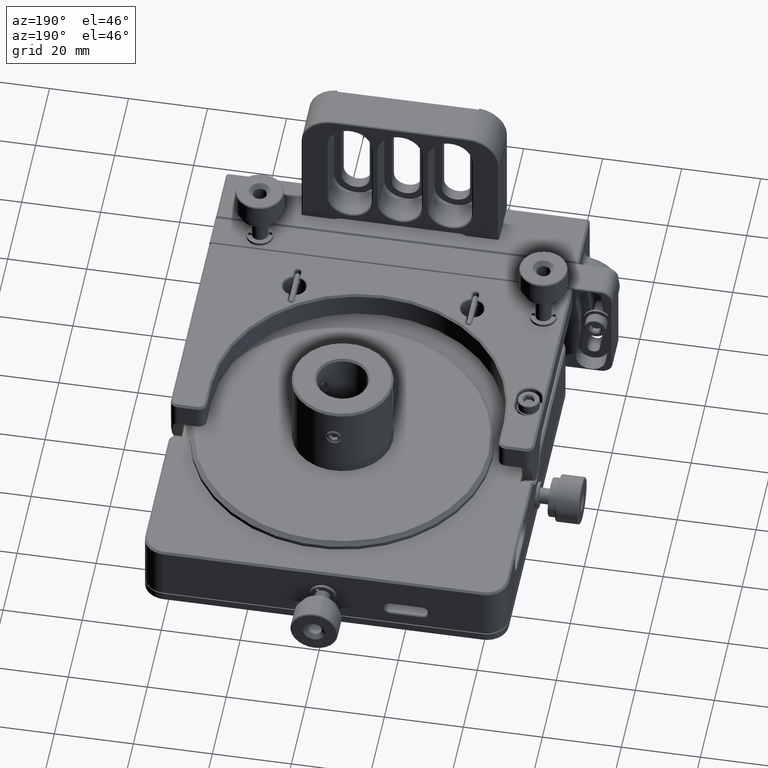
[diagram: clean part render]
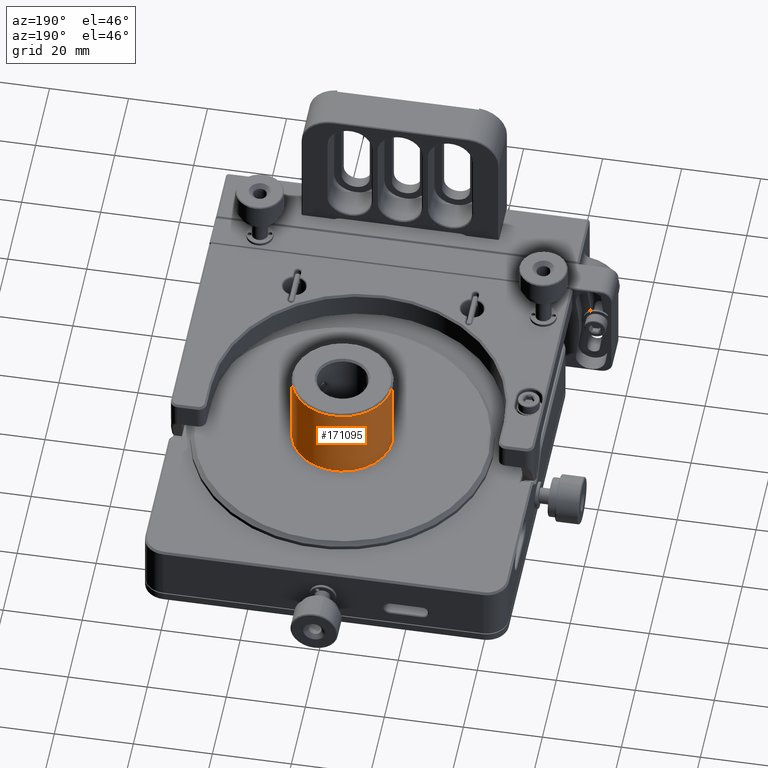
[diagram: same view with one face highlighted and labeled with its STEP entity id]
A machine part, auxiliary view. The second image highlights one B-rep face of the part: STEP entity #171095.
In plain terms, the highlighted cylindrical surface (partial cylindrical patch) has radius 12.698 mm, axis along (-0, -0, 1).
Its self-contained STEP definition (entity closure, byte-faithful):
#508 = CARTESIAN_POINT ( 'NONE',  ( 5.254184034160585881, 80.47759828847161145, 17.06266995262775765 ) ) ;
#2625 = DIRECTION ( 'NONE',  ( -0.000000000000000000, -0.000000000000000000, 1.000000000000000000 ) ) ;
#7463 = CARTESIAN_POINT ( 'NONE',  ( 1.653850114024950635, 80.53290262516031817, 15.92424344947711212 ) ) ;
#7929 = CARTESIAN_POINT ( 'NONE',  ( 5.254424885712084325, 80.47756001795679026, 17.33321840988929452 ) ) ;
#11191 = CARTESIAN_POINT ( 'NONE',  ( 4.865766236773393594, 80.53336909465060955, 15.91894263216253336 ) ) ;
#12707 = CARTESIAN_POINT ( 'NONE',  ( 2.991673036625071447, 80.63273077536217670, 19.33511980929755936 ) ) ;
#12941 = CARTESIAN_POINT ( 'NONE',  ( 4.290588455545328195, 80.59361543637069758, 19.04557798173056327 ) ) ;
#20749 = DIRECTION ( 'NONE',  ( 1.000000000000000000, 0.000000000000000000, 0.000000000000000000 ) ) ;
#21268 = CARTESIAN_POINT ( 'NONE',  ( 4.507158145227051271, 80.57414106991549829, 18.88280191626660098 ) ) ;
#21614 = DIRECTION ( 'NONE',  ( 0.000000000000000000, 0.000000000000000000, -1.000000000000000000 ) ) ;
#21680 = CARTESIAN_POINT ( 'NONE',  ( 3.125167098379118436, 80.63490672952566740, 15.05000000000000249 ) ) ;
#22370 = ORIENTED_EDGE ( 'NONE', *, *, #131929, .F. ) ;
#22405 = VERTEX_POINT ( 'NONE', #130311 ) ;
#23582 = EDGE_CURVE ( 'NONE', #65465, #77016, #159232, .T. ) ;
#25425 = VECTOR ( 'NONE', #133388, 1000.000000000000000 ) ;
#25430 = CARTESIAN_POINT ( 'NONE',  ( 3.261633096731149983, 80.63490672952565319, 15.05000000000000604 ) ) ;
#27175 = CARTESIAN_POINT ( 'NONE',  ( 5.195307603587358436, 80.48683436411978676, 17.73583536331447519 ) ) ;
#27226 = EDGE_CURVE ( 'NONE', #22405, #67735, #42604, .T. ) ;
#27838 = CARTESIAN_POINT ( 'NONE',  ( 1.268658629827867701, 80.47753099116624753, 17.07005893717204259 ) ) ;
#38514 = CARTESIAN_POINT ( 'NONE',  ( 1.365880339414113909, 80.49268620777692718, 17.87485179338816010 ) ) ;
#38760 = CARTESIAN_POINT ( 'NONE',  ( 3.397356113308865222, 80.63490672952563898, 19.35000000000000497 ) ) ;
#39654 = CARTESIAN_POINT ( 'NONE',  ( 3.927963333403809543, 80.61801542554628952, 19.23093074672235758 ) ) ;
#40540 = CARTESIAN_POINT ( 'NONE',  ( 5.193909434965968686, 80.48705027416048097, 16.65845908991830626 ) ) ;
#41174 = CARTESIAN_POINT ( 'NONE',  ( 1.329588331093721543, 80.48708612607647694, 17.74258250134342774 ) ) ;
#42604 = B_SPLINE_CURVE_WITH_KNOTS ( 'NONE', 3,
 ( #77719, #21680, #64356, #172934, #101802, #142751, #75110, #129381, #7463, #61762, #170343, #48405, #102681, #156993, #27838, #55413, #160463, #41174, #38514, #106162, #107941, #79466, #147993, #82126, #109694, #12707, #164011, #54554 ),
 .UNSPECIFIED., .F., .F.,
 ( 4, 2, 2, 2, 2, 2, 2, 2, 2, 2, 2, 2, 2, 4 ),
 ( 0.01135673180680384954, 0.01176349796898941424, 0.01217026413117497895, 0.01298379645554610488, 0.01339056261773167132, 0.01379732877991723776, 0.01420409494210280593, 0.01461086110428837237, 0.01501762726647393881, 0.01542439342865950525, 0.01623792575303063465, 0.01705145807740176753, 0.01745822423958733050, 0.01786499040177289693 ),
 .UNSPECIFIED. ) ;
#48405 = CARTESIAN_POINT ( 'NONE',  ( 1.362750636554019179, 80.49221196540590029, 16.53530761371471414 ) ) ;
#48967 = EDGE_CURVE ( 'NONE', #111548, #77016, #148616, .T. ) ;
#54554 = CARTESIAN_POINT ( 'NONE',  ( 3.261633096731180625, 80.63490672952571003, 19.35000000000040643 ) ) ;
#55413 = CARTESIAN_POINT ( 'NONE',  ( 1.269275005505372533, 80.47762893096623316, 17.34046873637883834 ) ) ;
#55751 = LINE ( 'NONE', #148327, #125463 ) ;
#56916 = CYLINDRICAL_SURFACE ( 'NONE', #79635, 12.69800000000000040 ) ;
#57892 = ORIENTED_EDGE ( 'NONE', *, *, #23582, .F. ) ;
#61762 = CARTESIAN_POINT ( 'NONE',  ( 1.515434818265035899, 80.51446095499440503, 16.15687218733976138 ) ) ;
#62222 = CARTESIAN_POINT ( 'NONE',  ( 4.174093525944051031, 80.60268326090323399, 15.28404915194718150 ) ) ;
#64356 = CARTESIAN_POINT ( 'NONE',  ( 2.990698861183489932, 80.63270835796626557, 15.06503568622006028 ) ) ;
#65465 = VERTEX_POINT ( 'NONE', #147551 ) ;
#66348 = CARTESIAN_POINT ( 'NONE',  ( 5.064109665665098348, 80.50641557257533520, 16.27490055308177475 ) ) ;
#67239 = CARTESIAN_POINT ( 'NONE',  ( 4.606170022506306694, 80.56384771829603153, 15.60864863509328870 ) ) ;
#67735 = VERTEX_POINT ( 'NONE', #89325 ) ;
#75110 = CARTESIAN_POINT ( 'NONE',  ( 2.005934790488615338, 80.57398628722522460, 15.50837068202054247 ) ) ;
#75592 = EDGE_CURVE ( 'NONE', #81756, #65465, #144565, .T. ) ;
#77016 = VERTEX_POINT ( 'NONE', #172127 ) ;
#77719 = CARTESIAN_POINT ( 'NONE',  ( 3.261633096731149983, 80.63490672952565319, 15.05000000000000604 ) ) ;
#79466 = CARTESIAN_POINT ( 'NONE',  ( 2.008039209826939953, 80.57416384092607586, 18.89274337173506524 ) ) ;
#79635 = AXIS2_PLACEMENT_3D ( 'NONE', #165504, #2625, #125434 ) ;
#80576 = CARTESIAN_POINT ( 'NONE',  ( 4.174949264192922449, 80.60262294783910875, 19.11548911059504263 ) ) ;
#81468 = CARTESIAN_POINT ( 'NONE',  ( 4.786274793737296029, 80.54336880159065970, 15.81042564990065102 ) ) ;
#81756 = VERTEX_POINT ( 'NONE', #88404 ) ;
#82126 = CARTESIAN_POINT ( 'NONE',  ( 2.596147527756150986, 80.61804587433147162, 19.23112934630206539 ) ) ;
#87234 = EDGE_LOOP ( 'NONE', ( #22370, #139004 ) ) ;
#88404 = CARTESIAN_POINT ( 'NONE',  ( -9.436366903268853079, 67.93690672952565990, 5.200000000000008171 ) ) ;
#89325 = CARTESIAN_POINT ( 'NONE',  ( 3.261633096731180625, 80.63490672952571003, 19.35000000000040643 ) ) ;
#93044 = CARTESIAN_POINT ( 'NONE',  ( 5.159434450553439966, 80.49237563960332409, 17.86818963106929203 ) ) ;
#98441 = CARTESIAN_POINT ( 'NONE',  ( -9.436366903268853079, 67.93690672952565990, 24.70000000000001350 ) ) ;
#99598 = FACE_OUTER_BOUND ( 'NONE', #110757, .T. ) ;
#101101 = ORIENTED_EDGE ( 'NONE', *, *, #75592, .F. ) ;
#101802 = CARTESIAN_POINT ( 'NONE',  ( 2.595020965364231547, 80.61799176542251644, 15.16925490185409409 ) ) ;
#102681 = CARTESIAN_POINT ( 'NONE',  ( 1.327626394303378143, 80.48678290944666003, 16.66566357310241031 ) ) ;
#105528 = CARTESIAN_POINT ( 'NONE',  ( 5.242764004446205384, 80.47943044122378353, 17.46785732006928171 ) ) ;
#105843 = DIRECTION ( 'NONE',  ( 1.000000000000000000, 0.000000000000000000, 0.000000000000000000 ) ) ;
#106162 = CARTESIAN_POINT ( 'NONE',  ( 1.507379039757452022, 80.51350754202644566, 18.25371441414634788 ) ) ;
#107941 = CARTESIAN_POINT ( 'NONE',  ( 1.649451353851502100, 80.53343938581048178, 18.49199015092616705 ) ) ;
#108289 = DIRECTION ( 'NONE',  ( -0.000000000000000000, -0.000000000000000000, 1.000000000000000000 ) ) ;
#108850 = AXIS2_PLACEMENT_3D ( 'NONE', #143548, #21614, #20749 ) ;
#109694 = CARTESIAN_POINT ( 'NONE',  ( 2.726305986772625811, 80.62431196157513114, 19.27580021545859523 ) ) ;
#110411 = AXIS2_PLACEMENT_3D ( 'NONE', #132547, #121852, #105843 ) ;
#110757 = EDGE_LOOP ( 'NONE', ( #101101, #154855, #153097, #57892 ) ) ;
#111548 = VERTEX_POINT ( 'NONE', #98441 ) ;
#117412 = CARTESIAN_POINT ( 'NONE',  ( 15.95963309673114772, 67.93690672952565990, -105.3550330477587380 ) ) ;
#119046 = EDGE_CURVE ( 'NONE', #81756, #111548, #55751, .T. ) ;
#119779 = CARTESIAN_POINT ( 'NONE',  ( 3.798598475184198797, 80.62423508190074983, 19.27525125693348684 ) ) ;
#120641 = CARTESIAN_POINT ( 'NONE',  ( 5.018791746407708310, 80.51309771097366763, 18.24820603124245366 ) ) ;
#121540 = CARTESIAN_POINT ( 'NONE',  ( 4.289355806817995109, 80.59371121500818447, 15.35368003699588613 ) ) ;
#121852 = DIRECTION ( 'NONE',  ( -0.000000000000000000, -0.000000000000000000, -1.000000000000000000 ) ) ;
#125434 = DIRECTION ( 'NONE',  ( 1.000000000000000000, 0.000000000000000000, 0.000000000000000000 ) ) ;
#125463 = VECTOR ( 'NONE', #108289, 1000.000000000000000 ) ;
#128055 = FACE_BOUND ( 'NONE', #87234, .T. ) ;
#129381 = CARTESIAN_POINT ( 'NONE',  ( 1.733748924409264536, 80.54298115624354182, 15.81444092557703840 ) ) ;
#129849 = CARTESIAN_POINT ( 'NONE',  ( 3.534698436270926614, 80.63265672151035801, 19.33460514995109847 ) ) ;
#130311 = CARTESIAN_POINT ( 'NONE',  ( 3.261633096731149983, 80.63490672952565319, 15.05000000000000604 ) ) ;
#131929 = EDGE_CURVE ( 'NONE', #67735, #22405, #168189, .T. ) ;
#132547 = CARTESIAN_POINT ( 'NONE',  ( 3.261633096731147763, 67.93690672952565990, 5.200000000000008171 ) ) ;
#133119 = CARTESIAN_POINT ( 'NONE',  ( 5.158389384611218986, 80.49253454821509024, 16.52834695825949751 ) ) ;
#133388 = DIRECTION ( 'NONE',  ( -0.000000000000000000, -0.000000000000000000, 1.000000000000000000 ) ) ;
#134861 = CARTESIAN_POINT ( 'NONE',  ( 5.241943357795489256, 80.47956059974646337, 16.92541856730390393 ) ) ;
#139004 = ORIENTED_EDGE ( 'NONE', *, *, #27226, .F. ) ;
#142751 = CARTESIAN_POINT ( 'NONE',  ( 2.227265141200841292, 80.59509098390850568, 15.34098332770649797 ) ) ;
#143548 = CARTESIAN_POINT ( 'NONE',  ( 3.261633096731147763, 67.93690672952565990, 24.70000000000001350 ) ) ;
#144565 = CIRCLE ( 'NONE', #110411, 12.69800000000000040 ) ;
#147353 = CARTESIAN_POINT ( 'NONE',  ( 4.504911967457543298, 80.57435787293924534, 15.51532829698425431 ) ) ;
#147551 = CARTESIAN_POINT ( 'NONE',  ( 15.95963309673114772, 67.93690672952565990, 5.200000000000008171 ) ) ;
#147993 = CARTESIAN_POINT ( 'NONE',  ( 2.229956786955461290, 80.59529036258123824, 19.06055434798302883 ) ) ;
#148327 = CARTESIAN_POINT ( 'NONE',  ( -9.436366903268853079, 67.93690672952565990, -105.3550330477587380 ) ) ;
#148616 = CIRCLE ( 'NONE', #108850, 12.69800000000000040 ) ;
#149101 = CARTESIAN_POINT ( 'NONE',  ( 5.004590970750414591, 80.51491154334193823, 16.15063331344536834 ) ) ;
#153097 = ORIENTED_EDGE ( 'NONE', *, *, #48967, .T. ) ;
#154855 = ORIENTED_EDGE ( 'NONE', *, *, #119046, .T. ) ;
#156993 = CARTESIAN_POINT ( 'NONE',  ( 1.280445559075287010, 80.47942123009615045, 16.93284248834589789 ) ) ;
#159232 = LINE ( 'NONE', #117412, #25425 ) ;
#160463 = CARTESIAN_POINT ( 'NONE',  ( 1.281350550774083663, 80.47956517581260982, 17.47497957513269640 ) ) ;
#161593 = CARTESIAN_POINT ( 'NONE',  ( 3.261633096731180625, 80.63490672952571003, 19.35000000000040643 ) ) ;
#162496 = CARTESIAN_POINT ( 'NONE',  ( 4.877597099449071827, 80.53295961703071271, 18.48675234816511903 ) ) ;
#164011 = CARTESIAN_POINT ( 'NONE',  ( 3.125883482500537269, 80.63490672952566740, 19.35000000000001208 ) ) ;
#165504 = CARTESIAN_POINT ( 'NONE',  ( 3.261633096731147763, 67.93690672952565990, -105.3550330477587380 ) ) ;
#168189 = B_SPLINE_CURVE_WITH_KNOTS ( 'NONE', 3,
 ( #161593, #38760, #129849, #119779, #39654, #80576, #12941, #21268, #174054, #162496, #120641, #93044, #27175, #105528, #7929, #508, #134861, #40540, #133119, #66348, #149101, #11191, #81468, #67239, #147353, #121540, #62222, #170793, #175838, #25430 ),
 .UNSPECIFIED., .F., .F.,
 ( 4, 2, 2, 2, 2, 2, 2, 2, 2, 2, 2, 2, 2, 2, 4 ),
 ( 0.004849748386022164834, 0.005256434849821022513, 0.005663121313619880193, 0.006069807777418737872, 0.006476494241217595552, 0.007289867168815313513, 0.007696553632614167723, 0.008103240096413022800, 0.008509926560211876143, 0.008916613024010731220, 0.009323299487809584563, 0.009729985951608437905, 0.01013667241540729125, 0.01054335887920614633, 0.01135673180680384954 ),
 .UNSPECIFIED. ) ;
#170343 = CARTESIAN_POINT ( 'NONE',  ( 1.456399077069744807, 80.50601864317921752, 16.28113126196876692 ) ) ;
#170793 = CARTESIAN_POINT ( 'NONE',  ( 3.804031803172226223, 80.62572497055741394, 15.11126751710417793 ) ) ;
#171095 = ADVANCED_FACE ( 'NONE', ( #128055, #99598 ), #56916, .T. ) ;
#172127 = CARTESIAN_POINT ( 'NONE',  ( 15.95963309673114772, 67.93690672952565990, 24.70000000000001350 ) ) ;
#172934 = CARTESIAN_POINT ( 'NONE',  ( 2.725650937043667010, 80.62428263919284177, 15.12440886653111605 ) ) ;
#174054 = CARTESIAN_POINT ( 'NONE',  ( 4.608156807456848192, 80.56363429042518476, 18.78937718219732389 ) ) ;
#175838 = CARTESIAN_POINT ( 'NONE',  ( 3.534511617404410000, 80.63490672952568161, 15.05000000000000959 ) ) ;